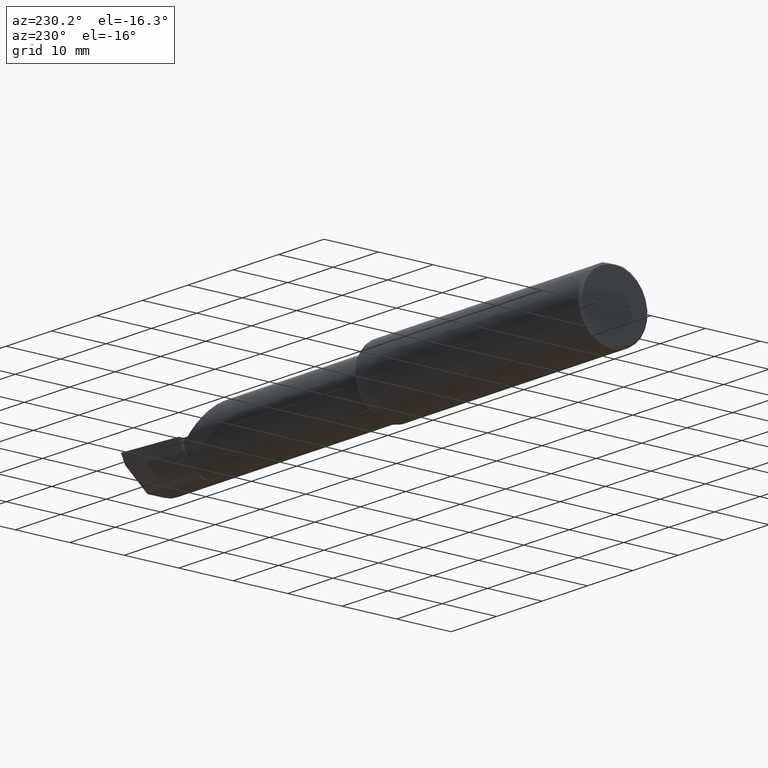
[diagram: clean part render]
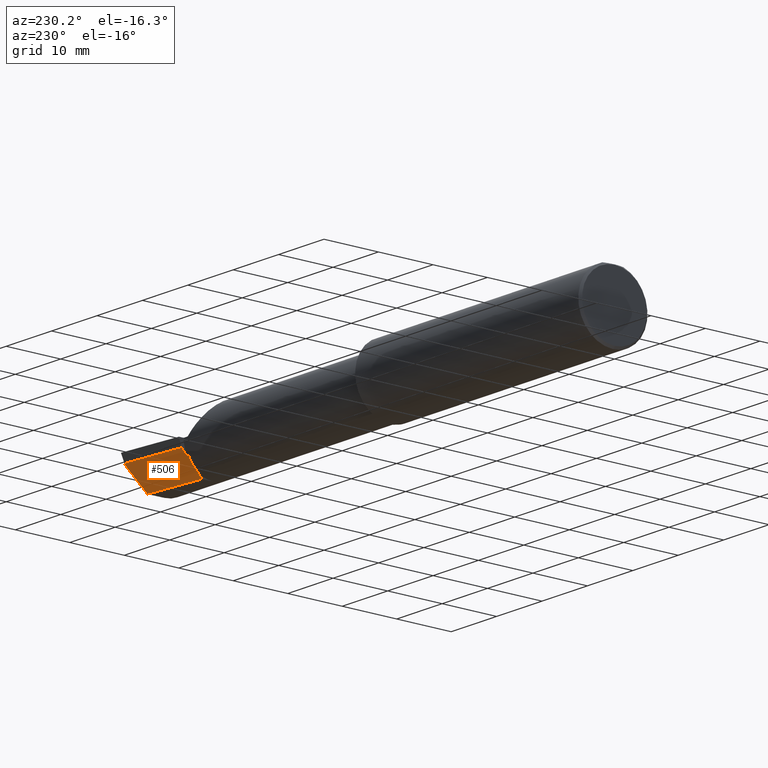
[diagram: same view with one face highlighted and labeled with its STEP entity id]
A machine part, auxiliary view. The second image highlights one B-rep face of the part: STEP entity #506.
In plain terms, the highlighted planar face has unit normal (0.0689, -0.716, 0.6947).
Its self-contained STEP definition (entity closure, byte-faithful):
#9 = CARTESIAN_POINT ( 'NONE',  ( 3.544999999999999929, 0.02733053485622426171, -0.2131499999999999506 ) ) ;
#31 = VERTEX_POINT ( 'NONE', #591 ) ;
#34 = VERTEX_POINT ( 'NONE', #526 ) ;
#55 = CARTESIAN_POINT ( 'NONE',  ( 3.536975816846326559, 0.1338694103809226765, -0.1025372660271275105 ) ) ;
#92 = VERTEX_POINT ( 'NONE', #579 ) ;
#104 = CARTESIAN_POINT ( 'NONE',  ( 3.989362363380625442, 0.2181189514202935831, -0.06059586115756942365 ) ) ;
#121 = LINE ( 'NONE', #745, #152 ) ;
#125 = CARTESIAN_POINT ( 'NONE',  ( 3.528944985009564217, 0.1743638780700109969, -0.06000000000000001166 ) ) ;
#146 = EDGE_CURVE ( 'NONE', #788, #34, #153, .T. ) ;
#152 = VECTOR ( 'NONE', #605, 39.37007874015748854 ) ;
#153 =( BOUNDED_CURVE ( )  B_SPLINE_CURVE ( 3, ( #787, #55, #670, #598 ),
 .UNSPECIFIED., .F., .F. ) 
 B_SPLINE_CURVE_WITH_KNOTS ( ( 4, 4 ),
 ( 2.868174658477173455, 2.883234730632700415 ),
 .UNSPECIFIED. ) 
 CURVE ( )  GEOMETRIC_REPRESENTATION_ITEM ( )  RATIONAL_B_SPLINE_CURVE ( ( 1.000000000000000000, 0.9999810996081960335, 0.9999810996081960335, 1.000000000000000000 ) ) 
 REPRESENTATION_ITEM ( '' )  );
#164 = ORIENTED_EDGE ( 'NONE', *, *, #409, .T. ) ;
#167 = ORIENTED_EDGE ( 'NONE', *, *, #485, .F. ) ;
#179 = EDGE_CURVE ( 'NONE', #451, #31, #404, .T. ) ;
#191 = CARTESIAN_POINT ( 'NONE',  ( 3.543466858877805326, 0.05663251955088012546, -0.1827944341085905589 ) ) ;
#200 = EDGE_CURVE ( 'NONE', #92, #772, #488, .T. ) ;
#216 = ORIENTED_EDGE ( 'NONE', *, *, #146, .T. ) ;
#293 = ORIENTED_EDGE ( 'NONE', *, *, #855, .T. ) ;
#294 = ORIENTED_EDGE ( 'NONE', *, *, #538, .T. ) ;
#298 = VERTEX_POINT ( 'NONE', #467 ) ;
#299 = CARTESIAN_POINT ( 'NONE',  ( 3.544999999999999929, 0.1759098001822370361, -0.06000000000000001166 ) ) ;
#306 = EDGE_CURVE ( 'NONE', #693, #92, #339, .T. ) ;
#319 = CARTESIAN_POINT ( 'NONE',  ( 3.991359894127309182, 0.2138750095474682700, -0.06516861643763581513 ) ) ;
#324 = CARTESIAN_POINT ( 'NONE',  ( 3.544999999999999929, 0.2148312740513257935, -0.01988118725737609768 ) ) ;
#334 = CARTESIAN_POINT ( 'NONE',  ( 3.541916792879877374, 0.05627666367902749156, -0.1830073912696826288 ) ) ;
#335 = FACE_OUTER_BOUND ( 'NONE', #837, .T. ) ;
#339 = LINE ( 'NONE', #734, #543 ) ;
#360 = VERTEX_POINT ( 'NONE', #299 ) ;
#363 = CARTESIAN_POINT ( 'NONE',  ( 3.540349815208490458, 0.05592018782259767368, -0.1832193089843152378 ) ) ;
#398 = LINE ( 'NONE', #324, #721 ) ;
#404 = LINE ( 'NONE', #457, #774 ) ;
#409 = EDGE_CURVE ( 'NONE', #298, #451, #852, .T. ) ;
#412 = VECTOR ( 'NONE', #466, 39.37007874015748854 ) ;
#441 = CARTESIAN_POINT ( 'NONE',  ( 3.985635073714570709, 0.2182954141789433533, -0.06004403198038582579 ) ) ;
#451 = VERTEX_POINT ( 'NONE', #514 ) ;
#452 = CARTESIAN_POINT ( 'NONE',  ( 3.985436870590281178, 0.2183047977990047461, -0.06001468779820763599 ) ) ;
#457 = CARTESIAN_POINT ( 'NONE',  ( 3.983714411583730630, 0.1632262006094490903, -0.1166167083458043846 ) ) ;
#459 = CARTESIAN_POINT ( 'NONE',  ( 3.990474961019639277, 0.2080126185684980644, -0.07112352112763094258 ) ) ;
#464 = CARTESIAN_POINT ( 'NONE',  ( 3.540349815208490458, 0.05592018782259767368, -0.1832193089843152378 ) ) ;
#466 = DIRECTION ( 'NONE',  ( 0.06658005426110603919, -0.6914603011188220627, -0.7193398003386548556 ) ) ;
#467 = CARTESIAN_POINT ( 'NONE',  ( 3.985635073714570709, 0.2182954141789433533, -0.06004403198038582579 ) ) ;
#475 = CARTESIAN_POINT ( 'NONE',  ( 3.528944985009564217, 0.1743638780700109969, -0.06000000000000001166 ) ) ;
#477 = EDGE_CURVE ( 'NONE', #693, #31, #121, .T. ) ;
#485 = EDGE_CURVE ( 'NONE', #788, #772, #865, .T. ) ;
#488 =( BOUNDED_CURVE ( )  B_SPLINE_CURVE ( 3, ( #795, #191, #334, #464 ),
 .UNSPECIFIED., .F., .T. ) 
 B_SPLINE_CURVE_WITH_KNOTS ( ( 4, 4 ),
 ( 3.399950576546887593, 3.405787439796295057 ),
 .UNSPECIFIED. ) 
 CURVE ( )  GEOMETRIC_REPRESENTATION_ITEM ( )  RATIONAL_B_SPLINE_CURVE ( ( 1.000000000000000000, 0.9999971609209656886, 0.9999971609209656886, 1.000000000000000000 ) ) 
 REPRESENTATION_ITEM ( '' )  );
#499 = ORIENTED_EDGE ( 'NONE', *, *, #200, .T. ) ;
#506 = ADVANCED_FACE ( 'NONE', ( #335 ), #803, .F. ) ;
#510 = CARTESIAN_POINT ( 'NONE',  ( 3.985034660857450728, 0.2182803188501215574, -0.06000000000000001166 ) ) ;
#514 = CARTESIAN_POINT ( 'NONE',  ( 3.990474961019639277, 0.2080126185684980644, -0.07112352112763094258 ) ) ;
#526 = CARTESIAN_POINT ( 'NONE',  ( 3.544999999999999929, 0.1328281892403431197, -0.1044069278527782751 ) ) ;
#532 = CARTESIAN_POINT ( 'NONE',  ( 3.528944985009564217, 0.1743638780700109969, -0.06000000000000001166 ) ) ;
#538 = EDGE_CURVE ( 'NONE', #34, #360, #398, .T. ) ;
#539 = DIRECTION ( 'NONE',  ( -0.1053106618241655690, -0.6976485211320173629, -0.7086580314005234138 ) ) ;
#542 = EDGE_CURVE ( 'NONE', #360, #700, #862, .T. ) ;
#543 = VECTOR ( 'NONE', #669, 39.37007874015748143 ) ;
#547 = ORIENTED_EDGE ( 'NONE', *, *, #477, .F. ) ;
#573 = CARTESIAN_POINT ( 'NONE',  ( 3.985236590184780159, 0.2182997624328534003, -0.05999999999999994921 ) ) ;
#579 = CARTESIAN_POINT ( 'NONE',  ( 3.544999999999999929, 0.05698775240724691937, -0.1825804393148461047 ) ) ;
#584 = AXIS2_PLACEMENT_3D ( 'NONE', #125, #672, #667 ) ;
#591 = CARTESIAN_POINT ( 'NONE',  ( 3.969369008890590411, 0.06819262280682611421, -0.2131499999999999784 ) ) ;
#598 = CARTESIAN_POINT ( 'NONE',  ( 3.544999999999999929, 0.1328281892403431197, -0.1044069278527782751 ) ) ;
#605 = DIRECTION ( 'NONE',  ( 0.9953961983671800740, 0.09584575252021027003, -1.516874858616837700E-17 ) ) ;
#625 =( BOUNDED_CURVE ( )  B_SPLINE_CURVE ( 3, ( #510, #573, #452, #441 ),
 .UNSPECIFIED., .F., .F. ) 
 B_SPLINE_CURVE_WITH_KNOTS ( ( 4, 4 ),
 ( 3.064097098354582993, 3.156599629463191281 ),
 .UNSPECIFIED. ) 
 CURVE ( )  GEOMETRIC_REPRESENTATION_ITEM ( )  RATIONAL_B_SPLINE_CURVE ( ( 1.000000000000000000, 0.9992870672494006401, 0.9992870672494006401, 1.000000000000000000 ) ) 
 REPRESENTATION_ITEM ( '' )  );
#647 = ORIENTED_EDGE ( 'NONE', *, *, #306, .T. ) ;
#667 = DIRECTION ( 'NONE',  ( 0.000000000000000000, -0.6963153109074924352, -0.7177360153954949196 ) ) ;
#669 = DIRECTION ( 'NONE',  ( 0.000000000000000000, 0.6963153109074924352, 0.7177360153954949196 ) ) ;
#670 = CARTESIAN_POINT ( 'NONE',  ( 3.541044210672212866, 0.1333523194825137759, -0.1034740570574031182 ) ) ;
#672 = DIRECTION ( 'NONE',  ( 0.06894566448119621160, -0.7160281025913035613, 0.6946583704589933683 ) ) ;
#677 = DIRECTION ( 'NONE',  ( 0.000000000000000000, 0.6963153109074924352, 0.7177360153954949196 ) ) ;
#693 = VERTEX_POINT ( 'NONE', #9 ) ;
#697 = CARTESIAN_POINT ( 'NONE',  ( 3.985034660857450728, 0.2182803188501215574, -0.06000000000000001166 ) ) ;
#700 = VERTEX_POINT ( 'NONE', #697 ) ;
#712 = CARTESIAN_POINT ( 'NONE',  ( 3.532795049205045501, 0.1343794326159074848, -0.1015966078791037813 ) ) ;
#715 = CARTESIAN_POINT ( 'NONE',  ( 3.985635073714570709, 0.2182954141789433533, -0.06004403198038582579 ) ) ;
#721 = VECTOR ( 'NONE', #677, 39.37007874015748143 ) ;
#733 = DIRECTION ( 'NONE',  ( 0.9953961983671800740, 0.09584575252021031166, -0.000000000000000000 ) ) ;
#734 = CARTESIAN_POINT ( 'NONE',  ( 3.544999999999999929, 0.2148312740513257935, -0.01988118725737609768 ) ) ;
#745 = CARTESIAN_POINT ( 'NONE',  ( 3.988156289907357266, 0.07000163221415003911, -0.2131499999999999506 ) ) ;
#756 = ORIENTED_EDGE ( 'NONE', *, *, #179, .T. ) ;
#772 = VERTEX_POINT ( 'NONE', #363 ) ;
#774 = VECTOR ( 'NONE', #539, 39.37007874015748854 ) ;
#787 = CARTESIAN_POINT ( 'NONE',  ( 3.532795049205045501, 0.1343794326159074848, -0.1015966078791037813 ) ) ;
#788 = VERTEX_POINT ( 'NONE', #712 ) ;
#795 = CARTESIAN_POINT ( 'NONE',  ( 3.544999999999999929, 0.05698775240724691937, -0.1825804393148461047 ) ) ;
#803 = PLANE ( 'NONE',  #584 ) ;
#815 = VECTOR ( 'NONE', #733, 39.37007874015748854 ) ;
#821 = ORIENTED_EDGE ( 'NONE', *, *, #542, .T. ) ;
#837 = EDGE_LOOP ( 'NONE', ( #821, #293, #164, #756, #547, #647, #499, #167, #216, #294 ) ) ;
#852 =( BOUNDED_CURVE ( )  B_SPLINE_CURVE ( 3, ( #715, #104, #319, #459 ),
 .UNSPECIFIED., .F., .F. ) 
 B_SPLINE_CURVE_WITH_KNOTS ( ( 4, 4 ),
 ( 3.156599629463191281, 4.715023529952359738 ),
 .UNSPECIFIED. ) 
 CURVE ( )  GEOMETRIC_REPRESENTATION_ITEM ( )  RATIONAL_B_SPLINE_CURVE ( ( 1.000000000000000000, 0.8076450242550620162, 0.8076450242550620162, 1.000000000000000000 ) ) 
 REPRESENTATION_ITEM ( '' )  );
#855 = EDGE_CURVE ( 'NONE', #700, #298, #625, .T. ) ;
#862 = LINE ( 'NONE', #475, #815 ) ;
#865 = LINE ( 'NONE', #532, #412 ) ;